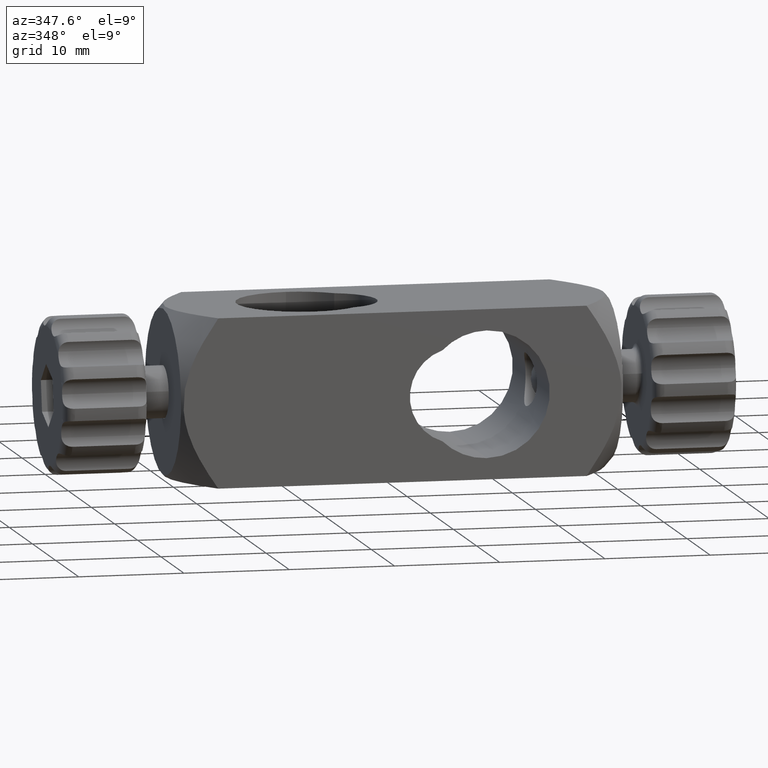
[diagram: clean part render]
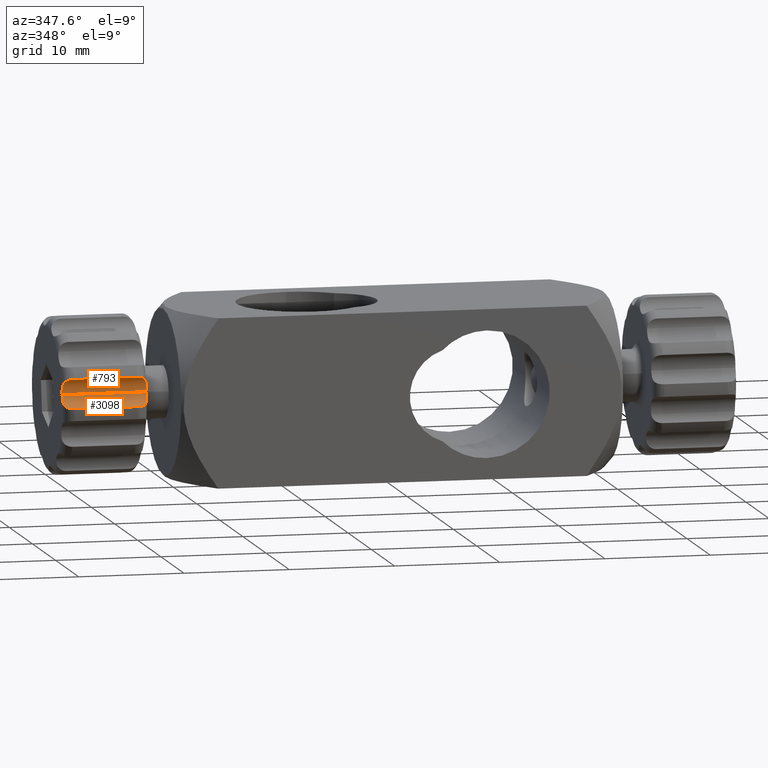
[diagram: same view with one multi-face feature highlighted, each face labeled with its STEP entity id]
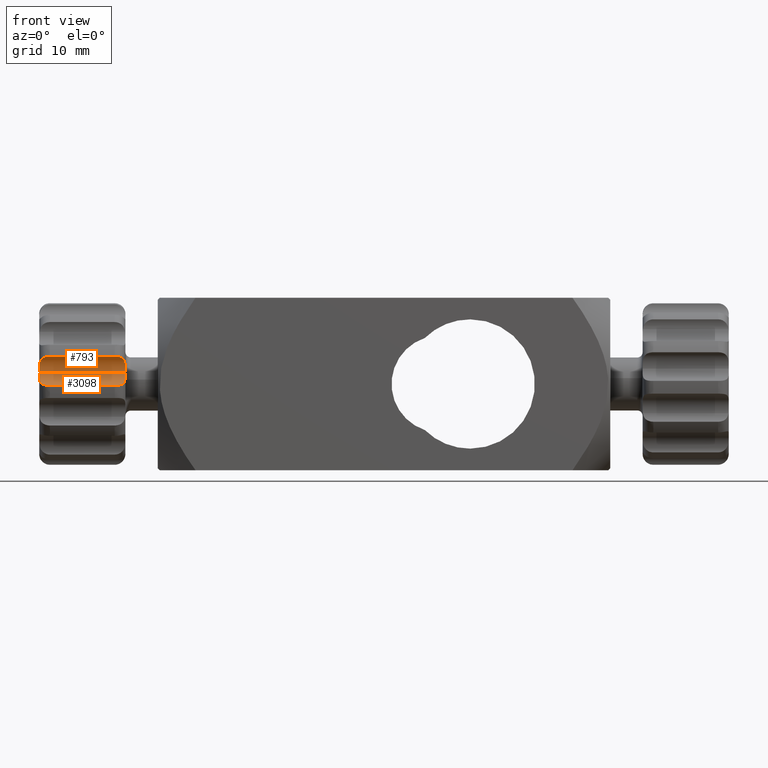
[diagram: same view with one multi-face feature highlighted, each face labeled with its STEP entity id]
A machine part, auxiliary view. The highlighted faces form ONE feature: a constant-radius fillet chain: 2 tangent blend faces with common blend radius 1.5 mm. The faces share edges in the B-rep.
A second angle (front view) of the same feature is appended — it is thin or edge-on in the first view.
Their STEP definitions:
[1] entity #3098 (Cylinder):
#54 = CARTESIAN_POINT ( 'NONE',  ( -24.80976759868310566, -7.499069890177919362, -0.1181134294940842655 ) ) ;
#122 = CARTESIAN_POINT ( 'NONE',  ( -31.61081791756818760, -7.296982177787400659, -0.04897512265676389615 ) ) ;
#273 = LINE ( 'NONE', #2114, #2157 ) ;
#451 = CARTESIAN_POINT ( 'NONE',  ( -24.00123009218005521, -6.514935108589371637, 0.7206560084584522352 ) ) ;
#472 = CARTESIAN_POINT ( 'NONE',  ( -24.08147621984198850, -6.900030449564638957, 0.1989356518257726913 ) ) ;
#530 = CARTESIAN_POINT ( 'NONE',  ( -24.15331705469859003, -7.037160711265205926, 0.09244766178672501888 ) ) ;
#564 = CARTESIAN_POINT ( 'NONE',  ( -24.05638725317352922, -6.831882854040340014, 0.2618476878817588283 ) ) ;
#633 = CARTESIAN_POINT ( 'NONE',  ( -32.00000000000000000, -6.409485173284844350, 1.080971698723686591 ) ) ;
#668 = ORIENTED_EDGE ( 'NONE', *, *, #4494, .F. ) ;
#782 = CARTESIAN_POINT ( 'NONE',  ( -23.99983086007096134, -6.449766148460941650, 0.8962227695547939632 ) ) ;
#820 = VERTEX_POINT ( 'NONE', #3476 ) ;
#1014 = AXIS2_PLACEMENT_3D ( 'NONE', #3586, #3101, #5794 ) ;
#1154 = CARTESIAN_POINT ( 'NONE',  ( -32.00250569970267378, -6.507344489775833907, 0.7162235694065861580 ) ) ;
#1162 = EDGE_CURVE ( 'NONE', #2377, #4558, #273, .T. ) ;
#1245 = CARTESIAN_POINT ( 'NONE',  ( -24.00000000000000711, -6.425089657328424408, 0.9884468812543093508 ) ) ;
#1562 = CARTESIAN_POINT ( 'NONE',  ( -31.37670695584172975, -7.443851821119796597, -0.1059688738924607632 ) ) ;
#1710 = DIRECTION ( 'NONE',  ( -1.000000000000000000, -2.958228394578795146E-31, 9.860761315262684790E-32 ) ) ;
#1719 = CARTESIAN_POINT ( 'NONE',  ( -30.99999999999999289, -7.499069890177908704, -0.1181134294940843071 ) ) ;
#1767 = ORIENTED_EDGE ( 'NONE', *, *, #3906, .F. ) ;
#1783 = VECTOR ( 'NONE', #1710, 1000.000000000000000 ) ;
#1953 = CARTESIAN_POINT ( 'NONE',  ( -31.84620838891366645, -7.037921338695929840, 0.09192689047392803292 ) ) ;
#1985 = CARTESIAN_POINT ( 'NONE',  ( -31.98118457777059831, -6.700863105973605016, 0.3953372772941414759 ) ) ;
#2114 = CARTESIAN_POINT ( 'NONE',  ( -32.00000000000000000, -6.409485173284860338, 1.080971698723689034 ) ) ;
#2157 = VECTOR ( 'NONE', #2655, 1000.000000000000000 ) ;
#2256 = CARTESIAN_POINT ( 'NONE',  ( -32.00000000000000000, -6.409485173284844350, 1.080971698723686591 ) ) ;
#2377 = VERTEX_POINT ( 'NONE', #2256 ) ;
#2430 = CARTESIAN_POINT ( 'NONE',  ( -24.62307058159872852, -7.443916789571886738, -0.1060343506746999204 ) ) ;
#2475 = CARTESIAN_POINT ( 'NONE',  ( -31.68119459307460772, -7.237303728098136268, -0.02278820763138148311 ) ) ;
#2655 = DIRECTION ( 'NONE',  ( 1.000000000000000000, 2.958228394578795146E-31, -9.860761315262684790E-32 ) ) ;
#2687 = CARTESIAN_POINT ( 'NONE',  ( -24.00280151425429764, -6.555450425512803214, 0.6364956159738468511 ) ) ;
#2875 = EDGE_LOOP ( 'NONE', ( #5041, #5178, #1767, #668 ) ) ;
#2896 = CARTESIAN_POINT ( 'NONE',  ( -31.19016829415996384, -7.499069890177924691, -0.1181134294940862639 ) ) ;
#2994 = EDGE_CURVE ( 'NONE', #5518, #2377, #5306, .T. ) ;
#3098 = ADVANCED_FACE ( 'NONE', ( #4009 ), #4039, .F. ) ;
#3101 = DIRECTION ( 'NONE',  ( 1.000000000000000000, 2.958228394578795146E-31, -9.860761315262684790E-32 ) ) ;
#3250 = CARTESIAN_POINT ( 'NONE',  ( -24.31823214156770163, -7.236799066123098534, -0.02255923688221547763 ) ) ;
#3406 = CARTESIAN_POINT ( 'NONE',  ( -31.79828812739179966, -7.108458185816052044, 0.04716643466633676368 ) ) ;
#3476 = CARTESIAN_POINT ( 'NONE',  ( -25.00000000000000711, -7.499069890177916697, -0.1181134294940866941 ) ) ;
#3551 = CARTESIAN_POINT ( 'NONE',  ( -24.01347099590546108, -6.652419192720175012, 0.4756257923568911750 ) ) ;
#3586 = CARTESIAN_POINT ( 'NONE',  ( -32.00000000000000000, -7.888597136350596450, 1.330426706121470071 ) ) ;
#3689 = B_SPLINE_CURVE_WITH_KNOTS ( 'NONE', 3,
 ( #5381, #1245, #782, #451, #2687, #3551, #5062, #564, #472, #530, #4605, #3250, #5191, #2430, #54, #3781 ),
 .UNSPECIFIED., .F., .F.,
 ( 4, 2, 2, 2, 2, 2, 2, 4 ),
 ( 0.002345343109242149348, 0.002626607650205264616, 0.002907872191168379885, 0.003189136732131495153, 0.003470401273094610856, 0.003751665814057726124, 0.004032930355020841393, 0.004595459436947072797 ),
 .UNSPECIFIED. ) ;
#3781 = CARTESIAN_POINT ( 'NONE',  ( -25.00000000000000711, -7.499069890177916697, -0.1181134294940866941 ) ) ;
#3821 = CARTESIAN_POINT ( 'NONE',  ( -32.00000000000000711, -6.440611985621549351, 0.8964091959318227776 ) ) ;
#3906 = EDGE_CURVE ( 'NONE', #820, #5518, #5339, .T. ) ;
#4009 = FACE_OUTER_BOUND ( 'NONE', #2875, .T. ) ;
#4039 = CYLINDRICAL_SURFACE ( 'NONE', #1014, 1.500000000000001332 ) ;
#4422 = CARTESIAN_POINT ( 'NONE',  ( -28.00000000000000000, -7.499069890177909592, -0.1181134294940877766 ) ) ;
#4494 = EDGE_CURVE ( 'NONE', #4558, #820, #3689, .T. ) ;
#4558 = VERTEX_POINT ( 'NONE', #5582 ) ;
#4605 = CARTESIAN_POINT ( 'NONE',  ( -24.20099060834534299, -7.107536993910886558, 0.04771210800935569291 ) ) ;
#4763 = CARTESIAN_POINT ( 'NONE',  ( -30.99999999999999289, -7.499069890177908704, -0.1181134294940843071 ) ) ;
#4825 = CARTESIAN_POINT ( 'NONE',  ( -31.95421380910946851, -6.832193135960072716, 0.2514758211148844236 ) ) ;
#5041 = ORIENTED_EDGE ( 'NONE', *, *, #1162, .F. ) ;
#5062 = CARTESIAN_POINT ( 'NONE',  ( -24.02272543713748476, -6.708932221223491865, 0.3993537333213851848 ) ) ;
#5178 = ORIENTED_EDGE ( 'NONE', *, *, #2994, .F. ) ;
#5191 = CARTESIAN_POINT ( 'NONE',  ( -24.38810358056107930, -7.296202535348284890, -0.04865229137275028926 ) ) ;
#5306 = B_SPLINE_CURVE_WITH_KNOTS ( 'NONE', 3,
 ( #4763, #2896, #1562, #122, #2475, #3406, #1953, #4825, #1985, #1154, #3821, #633 ),
 .UNSPECIFIED., .F., .F.,
 ( 4, 2, 2, 2, 2, 4 ),
 ( 1.972355051115314068E-07, 0.0005628260698711291679, 0.0008441404870541380744, 0.001125454904237146656, 0.001688083738603170323, 0.002250712572969193991 ),
 .UNSPECIFIED. ) ;
#5339 = LINE ( 'NONE', #4422, #1783 ) ;
#5381 = CARTESIAN_POINT ( 'NONE',  ( -24.00000000000000711, -6.409485173284858561, 1.080971698723692365 ) ) ;
#5518 = VERTEX_POINT ( 'NONE', #1719 ) ;
#5582 = CARTESIAN_POINT ( 'NONE',  ( -24.00000000000000711, -6.409485173284858561, 1.080971698723692365 ) ) ;
#5794 = DIRECTION ( 'NONE',  ( 0.000000000000000000, 0.9860746420438234461, -0.1663033382651872838 ) ) ;
[2] entity #793 (Cylinder):
#39 = CARTESIAN_POINT ( 'NONE',  ( -32.00245102510805850, -6.382453615944622349, 1.457972329634587005 ) ) ;
#165 = CARTESIAN_POINT ( 'NONE',  ( -24.04535234404055544, -6.536195958679907214, 2.002371175616134202 ) ) ;
#273 = LINE ( 'NONE', #2114, #2157 ) ;
#396 = ORIENTED_EDGE ( 'NONE', *, *, #1162, .T. ) ;
#459 = CARTESIAN_POINT ( 'NONE',  ( -31.80029751505806246, -6.728778082432071983, 2.284507435786848450 ) ) ;
#571 = B_SPLINE_CURVE_WITH_KNOTS ( 'NONE', 3,
 ( #829, #4173, #39, #4956, #3631, #4623, #459, #2277, #2761, #1367, #4115, #4564 ),
 .UNSPECIFIED., .F., .F.,
 ( 4, 2, 2, 2, 2, 4 ),
 ( 0.002250712572969193991, 0.002813180442059641691, 0.003375648311150089391, 0.003656882245695313241, 0.003938116180240537959, 0.004500584049330968311 ),
 .UNSPECIFIED. ) ;
#681 = ORIENTED_EDGE ( 'NONE', *, *, #2654, .F. ) ;
#761 = FACE_OUTER_BOUND ( 'NONE', #3610, .T. ) ;
#793 = ADVANCED_FACE ( 'NONE', ( #761 ), #3594, .F. ) ;
#829 = CARTESIAN_POINT ( 'NONE',  ( -32.00000000000000000, -6.409485173284844350, 1.080971698723686591 ) ) ;
#893 = CARTESIAN_POINT ( 'NONE',  ( -25.00000000000001421, -7.045531079968491817, 2.571087668905553070 ) ) ;
#1162 = EDGE_CURVE ( 'NONE', #2377, #4558, #273, .T. ) ;
#1367 = CARTESIAN_POINT ( 'NONE',  ( -31.37911375531480473, -6.996562423871661274, 2.540978619627833446 ) ) ;
#1386 = B_SPLINE_CURVE_WITH_KNOTS ( 'NONE', 3,
 ( #893, #3684, #3239, #5090, #1516, #165, #4894, #4832, #5270, #2516 ),
 .UNSPECIFIED., .F., .F.,
 ( 4, 2, 2, 2, 4 ),
 ( 9.423346789512846192E-05, 0.0006570108782318836733, 0.001219788288568638898, 0.001782565698905394123, 0.002345343109242149348 ),
 .UNSPECIFIED. ) ;
#1516 = CARTESIAN_POINT ( 'NONE',  ( -24.19027171118697339, -6.726738683556134468, 2.295094136441161226 ) ) ;
#1576 = CARTESIAN_POINT ( 'NONE',  ( -25.00000000000001421, -7.045531079968491817, 2.571087668905553070 ) ) ;
#1607 = VERTEX_POINT ( 'NONE', #1576 ) ;
#2054 = AXIS2_PLACEMENT_3D ( 'NONE', #3052, #2604, #4948 ) ;
#2114 = CARTESIAN_POINT ( 'NONE',  ( -32.00000000000000000, -6.409485173284860338, 1.080971698723689034 ) ) ;
#2122 = VERTEX_POINT ( 'NONE', #3279 ) ;
#2157 = VECTOR ( 'NONE', #2655, 1000.000000000000000 ) ;
#2256 = CARTESIAN_POINT ( 'NONE',  ( -32.00000000000000000, -6.409485173284844350, 1.080971698723686591 ) ) ;
#2277 = CARTESIAN_POINT ( 'NONE',  ( -31.68319638011099570, -6.828071128217165331, 2.393786881520122645 ) ) ;
#2377 = VERTEX_POINT ( 'NONE', #2256 ) ;
#2516 = CARTESIAN_POINT ( 'NONE',  ( -24.00000000000000711, -6.409485173284858561, 1.080971698723692365 ) ) ;
#2604 = DIRECTION ( 'NONE',  ( 1.000000000000000000, 2.958228394578795146E-31, -9.860761315262684790E-32 ) ) ;
#2654 = EDGE_CURVE ( 'NONE', #2377, #2122, #571, .T. ) ;
#2655 = DIRECTION ( 'NONE',  ( 1.000000000000000000, 2.958228394578795146E-31, -9.860761315262684790E-32 ) ) ;
#2662 = ORIENTED_EDGE ( 'NONE', *, *, #5304, .F. ) ;
#2682 = CARTESIAN_POINT ( 'NONE',  ( -28.00000000000000711, -7.045531079968478494, 2.571087668905543300 ) ) ;
#2742 = DIRECTION ( 'NONE',  ( 1.000000000000000000, 2.958228394578795146E-31, -9.860761315262684790E-32 ) ) ;
#2761 = CARTESIAN_POINT ( 'NONE',  ( -31.61308921505882807, -6.875904362296098249, 2.438237074040153107 ) ) ;
#3052 = CARTESIAN_POINT ( 'NONE',  ( -32.00000000000000000, -7.888597136350596450, 1.330426706121470071 ) ) ;
#3239 = CARTESIAN_POINT ( 'NONE',  ( -24.62450805239192064, -6.998026959352529275, 2.542096654307003156 ) ) ;
#3279 = CARTESIAN_POINT ( 'NONE',  ( -31.00000000000000000, -7.045531079968477606, 2.571087668905546852 ) ) ;
#3594 = CYLINDRICAL_SURFACE ( 'NONE', #2054, 1.500000000000001332 ) ;
#3610 = EDGE_LOOP ( 'NONE', ( #681, #396, #2662, #4733 ) ) ;
#3631 = CARTESIAN_POINT ( 'NONE',  ( -31.95553757886658630, -6.534715331667197091, 1.999688116890275147 ) ) ;
#3658 = EDGE_CURVE ( 'NONE', #2122, #1607, #4639, .T. ) ;
#3684 = CARTESIAN_POINT ( 'NONE',  ( -24.81195419890140030, -7.045531079968476718, 2.571087668905542856 ) ) ;
#4115 = CARTESIAN_POINT ( 'NONE',  ( -31.19040132043963354, -7.045531079969772570, 2.571087668906423040 ) ) ;
#4173 = CARTESIAN_POINT ( 'NONE',  ( -32.00000000000000711, -6.378367266172397798, 1.265481399113139505 ) ) ;
#4558 = VERTEX_POINT ( 'NONE', #5582 ) ;
#4564 = CARTESIAN_POINT ( 'NONE',  ( -31.00000000000000000, -7.045531079968477606, 2.571087668905546852 ) ) ;
#4623 = CARTESIAN_POINT ( 'NONE',  ( -31.84668700422750476, -6.678297440486129943, 2.220876783576483771 ) ) ;
#4639 = LINE ( 'NONE', #2682, #5164 ) ;
#4733 = ORIENTED_EDGE ( 'NONE', *, *, #3658, .F. ) ;
#4832 = CARTESIAN_POINT ( 'NONE',  ( -23.99751973267756355, -6.382423601230740928, 1.458423817403379452 ) ) ;
#4894 = CARTESIAN_POINT ( 'NONE',  ( -24.01883078645347425, -6.459903028933624114, 1.824162592830117946 ) ) ;
#4948 = DIRECTION ( 'NONE',  ( 0.000000000000000000, 0.9860746420438234461, -0.1663033382651872838 ) ) ;
#4956 = CARTESIAN_POINT ( 'NONE',  ( -31.98131066837985159, -6.459464645486345802, 1.822683258840067433 ) ) ;
#5090 = CARTESIAN_POINT ( 'NONE',  ( -24.30938315513339631, -6.836322371003768161, 2.404659977673130555 ) ) ;
#5164 = VECTOR ( 'NONE', #2742, 1000.000000000000000 ) ;
#5270 = CARTESIAN_POINT ( 'NONE',  ( -24.00000000000001066, -6.378262428001695739, 1.266103023806469663 ) ) ;
#5304 = EDGE_CURVE ( 'NONE', #1607, #4558, #1386, .T. ) ;
#5582 = CARTESIAN_POINT ( 'NONE',  ( -24.00000000000000711, -6.409485173284858561, 1.080971698723692365 ) ) ;